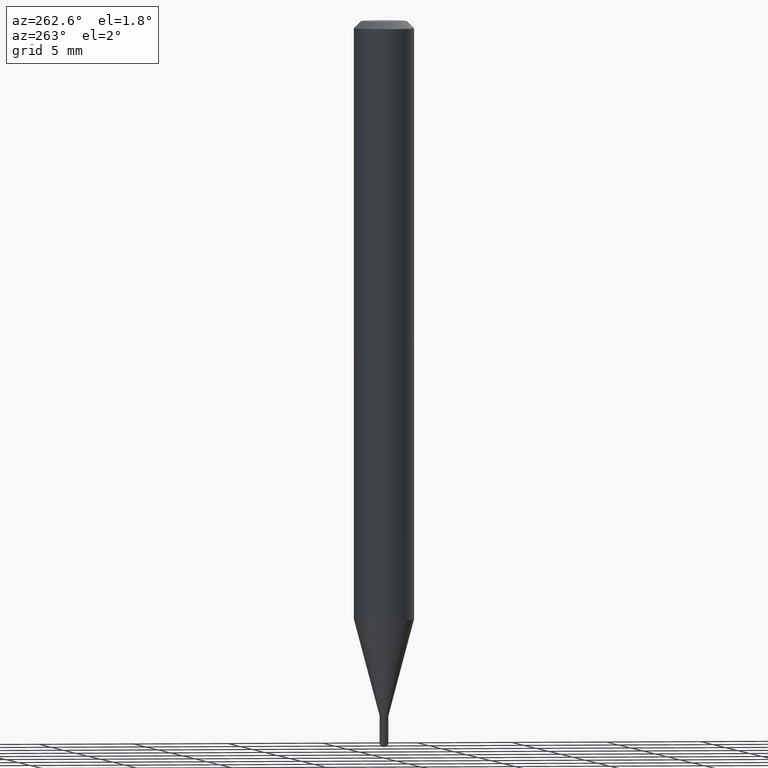
[diagram: clean part render]
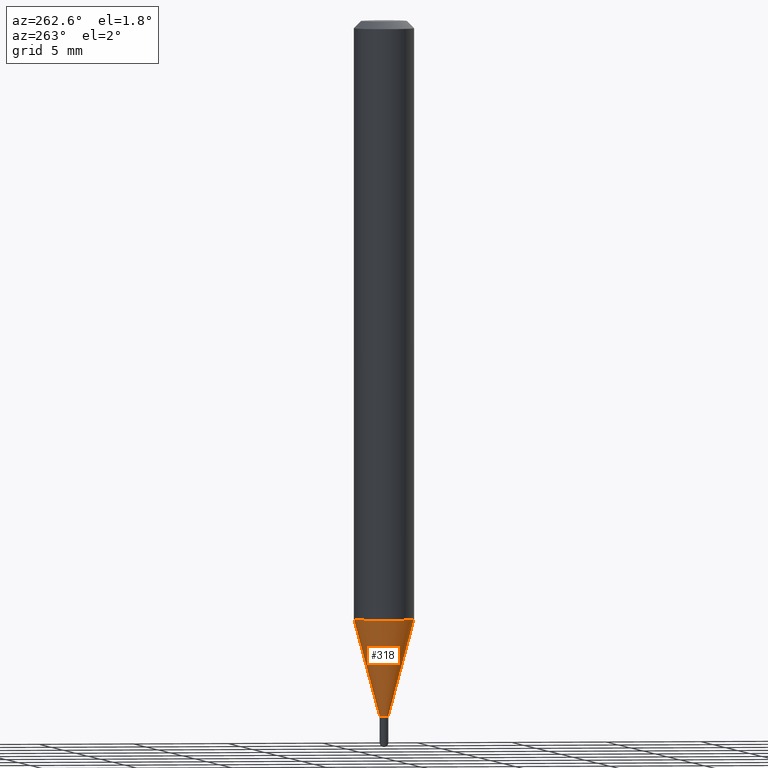
[diagram: same view with one face highlighted and labeled with its STEP entity id]
A machine part, auxiliary view. The second image highlights one B-rep face of the part: STEP entity #318.
In plain terms, the highlighted conical surface has half-angle 15 deg.
Its self-contained STEP definition (entity closure, byte-faithful):
#44 = EDGE_CURVE ( 'NONE', #171, #203, #272, .T. ) ;
#47 = AXIS2_PLACEMENT_3D ( 'NONE', #466, #383, #69 ) ;
#54 = CONICAL_SURFACE ( 'NONE', #380, 0.008999999999999922992, 0.2617993877991502960 ) ;
#56 = EDGE_LOOP ( 'NONE', ( #356, #98, #500, #165 ) ) ;
#69 = DIRECTION ( 'NONE',  ( -6.982962677686265922E-15, -1.000000000000000000, 4.370956789862821150E-15 ) ) ;
#82 = LINE ( 'NONE', #241, #119 ) ;
#85 = CARTESIAN_POINT ( 'NONE',  ( 3.511671854816513905E-29, -5.013797778233144791E-15, -1.436000000000000165 ) ) ;
#98 = ORIENTED_EDGE ( 'NONE', *, *, #124, .T. ) ;
#100 = CIRCLE ( 'NONE', #118, 0.008999999999999922992 ) ;
#118 = AXIS2_PLACEMENT_3D ( 'NONE', #189, #344, #507 ) ;
#119 = VECTOR ( 'NONE', #477, 39.37007874015748143 ) ;
#124 = EDGE_CURVE ( 'NONE', #289, #450, #100, .T. ) ;
#125 = CARTESIAN_POINT ( 'NONE',  ( -6.284666409914073747E-17, -0.009000000000004936343, -1.436000000000000165 ) ) ;
#165 = ORIENTED_EDGE ( 'NONE', *, *, #44, .F. ) ;
#171 = VERTEX_POINT ( 'NONE', #498 ) ;
#189 = CARTESIAN_POINT ( 'NONE',  ( 3.511671854816513905E-29, -5.013797778233144791E-15, -1.436000000000000165 ) ) ;
#198 = DIRECTION ( 'NONE',  ( -2.445453937894507542E-29, 3.491502631081576772E-15, 1.000000000000000000 ) ) ;
#203 = VERTEX_POINT ( 'NONE', #428 ) ;
#241 = CARTESIAN_POINT ( 'NONE',  ( 6.394884621844357387E-17, 0.008999999999994909641, -1.436000000000000165 ) ) ;
#272 = CIRCLE ( 'NONE', #47, 0.06250000000000000000 ) ;
#280 = DIRECTION ( 'NONE',  ( -1.807323732225330928E-15, -0.2588190451025182970, 0.9659258262890689783 ) ) ;
#289 = VERTEX_POINT ( 'NONE', #435 ) ;
#299 = VECTOR ( 'NONE', #280, 39.37007874015748143 ) ;
#317 = DIRECTION ( 'NONE',  ( -6.982962677686265922E-15, -1.000000000000000000, 0.000000000000000000 ) ) ;
#318 = ADVANCED_FACE ( 'NONE', ( #432 ), #54, .T. ) ;
#344 = DIRECTION ( 'NONE',  ( -2.445453937894507542E-29, 3.491502631081576772E-15, 1.000000000000000000 ) ) ;
#348 = LINE ( 'NONE', #125, #299 ) ;
#353 = EDGE_CURVE ( 'NONE', #289, #171, #82, .T. ) ;
#354 = EDGE_CURVE ( 'NONE', #450, #203, #348, .T. ) ;
#356 = ORIENTED_EDGE ( 'NONE', *, *, #353, .F. ) ;
#380 = AXIS2_PLACEMENT_3D ( 'NONE', #85, #198, #317 ) ;
#383 = DIRECTION ( 'NONE',  ( -2.445453937894507542E-29, 3.491502631081576772E-15, 1.000000000000000000 ) ) ;
#428 = CARTESIAN_POINT ( 'NONE',  ( -4.364351673553614462E-16, -0.06250000000000431599, -1.236335281795065466 ) ) ;
#432 = FACE_OUTER_BOUND ( 'NONE', #56, .T. ) ;
#435 = CARTESIAN_POINT ( 'NONE',  ( 2.540190280342682868E-16, 0.008999999999994909641, -1.436000000000000165 ) ) ;
#450 = VERTEX_POINT ( 'NONE', #488 ) ;
#466 = CARTESIAN_POINT ( 'NONE',  ( 3.023400983423658885E-29, -4.316667889286455172E-15, -1.236335281795065688 ) ) ;
#477 = DIRECTION ( 'NONE',  ( 1.839019923739601104E-15, 0.2588190451025250693, 0.9659258262890670910 ) ) ;
#488 = CARTESIAN_POINT ( 'NONE',  ( -6.284666409914073747E-17, -0.009000000000004936343, -1.436000000000000165 ) ) ;
#498 = CARTESIAN_POINT ( 'NONE',  ( 4.440892098500925929E-16, 0.06249999999999566319, -1.236335281795066132 ) ) ;
#500 = ORIENTED_EDGE ( 'NONE', *, *, #354, .T. ) ;
#507 = DIRECTION ( 'NONE',  ( -6.982962677686265922E-15, -1.000000000000000000, 0.000000000000000000 ) ) ;